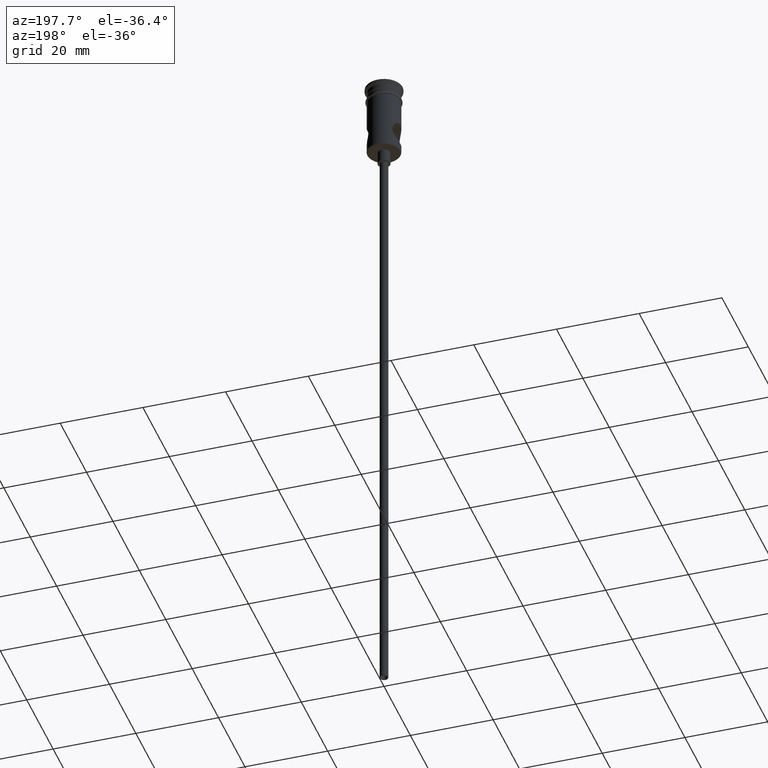
[diagram: clean part render]
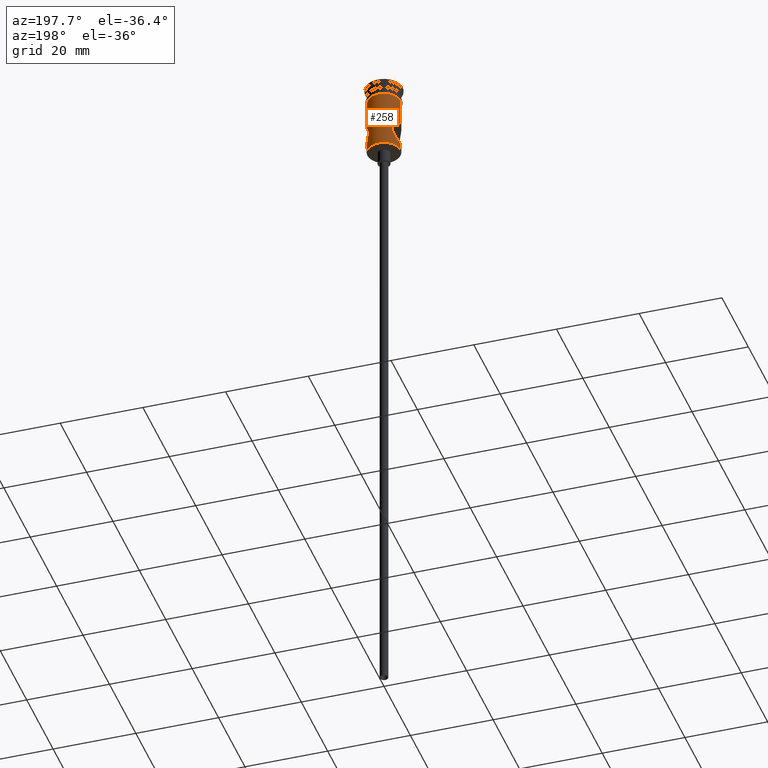
[diagram: same view with one face highlighted and labeled with its STEP entity id]
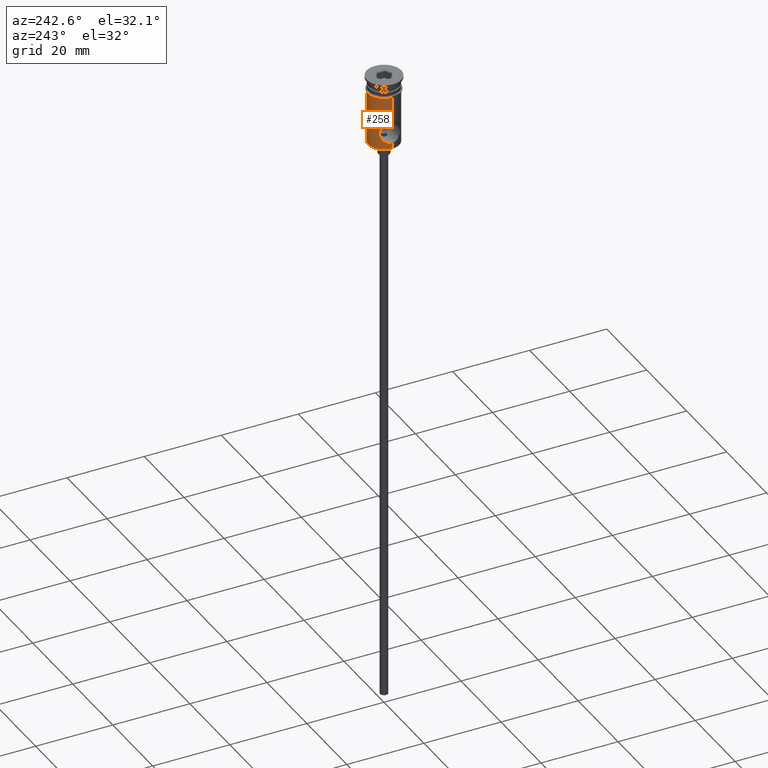
[diagram: same view with one face highlighted and labeled with its STEP entity id]
A machine part, auxiliary view. The second image highlights one B-rep face of the part: STEP entity #258.
A second angle (auxiliary view) of the same face is appended — the face is thin or edge-on in the first view.
In plain terms, the highlighted cylindrical surface (edge-blend (fillet) strip) has radius 4 mm, axis along (-0, -0, 1).
Its self-contained STEP definition (entity closure, byte-faithful):
#3 = CARTESIAN_POINT ( 'NONE',  ( 3.039098135780837762, 2.602305915985867024, -12.59307557713039216 ) ) ;
#28 = ORIENTED_EDGE ( 'NONE', *, *, #1321, .T. ) ;
#40 = CARTESIAN_POINT ( 'NONE',  ( 2.991204009610981096, 2.656164689714076044, -14.23545628303815924 ) ) ;
#75 = CARTESIAN_POINT ( 'NONE',  ( 0.000000000000000000, 0.000000000000000000, -3.799999999999998046 ) ) ;
#81 = EDGE_CURVE ( 'NONE', #1162, #254, #862, .T. ) ;
#84 = CARTESIAN_POINT ( 'NONE',  ( 3.422612705757198448, 2.075016451433645770, -11.68686323689984974 ) ) ;
#87 = AXIS2_PLACEMENT_3D ( 'NONE', #165, #592, #1266 ) ;
#92 = CARTESIAN_POINT ( 'NONE',  ( 3.898469200194268236, 0.9122845588995921462, -10.89933121525977811 ) ) ;
#95 = CARTESIAN_POINT ( 'NONE',  ( -2.990619957445074029, 2.656825094483681760, -12.76649644725104515 ) ) ;
#96 = CARTESIAN_POINT ( 'NONE',  ( 3.986569257409959377, 0.3752541894392961708, -10.76943406977662754 ) ) ;
#102 = CIRCLE ( 'NONE', #904, 4.000000000000000000 ) ;
#145 = CARTESIAN_POINT ( 'NONE',  ( 3.758839784380466842, 1.410695475187754955, -15.88804927343668005 ) ) ;
#147 = VERTEX_POINT ( 'NONE', #1293 ) ;
#154 = CARTESIAN_POINT ( 'NONE',  ( 3.217982150421164089, 2.378761493287735451, -14.89073011870239327 ) ) ;
#161 = CARTESIAN_POINT ( 'NONE',  ( 4.000000000000000000, 0.000000000000000000, 0.000000000000000000 ) ) ;
#165 = CARTESIAN_POINT ( 'NONE',  ( 0.000000000000000000, 0.000000000000000000, -17.80000000000001137 ) ) ;
#183 = ORIENTED_EDGE ( 'NONE', *, *, #522, .F. ) ;
#191 = CARTESIAN_POINT ( 'NONE',  ( -3.422360837206557704, 2.075363691986896075, -11.68737297714249124 ) ) ;
#195 = DIRECTION ( 'NONE',  ( -0.000000000000000000, -0.000000000000000000, 1.000000000000000000 ) ) ;
#197 = CARTESIAN_POINT ( 'NONE',  ( -3.039104102417667708, 2.602270566844717692, -12.59325405576322510 ) ) ;
#198 = CARTESIAN_POINT ( 'NONE',  ( 3.629467468971919075, 1.704948656411081842, -11.31407162498316943 ) ) ;
#200 = CARTESIAN_POINT ( 'NONE',  ( -4.000000000000000000, 4.898875736391346734E-16, -10.75000000000000000 ) ) ;
#201 = B_SPLINE_CURVE_WITH_KNOTS ( 'NONE', 3,
 ( #285, #712, #795, #1235, #415, #866, #949, #191, #965, #1409, #1169, #197, #95, #1286, #404, #852, #726, #411, #620, #1068, #633, #1076, #312, #734, #1292, #307, #1080, #1386, #858, #739 ),
 .UNSPECIFIED., .F., .F.,
 ( 4, 2, 2, 2, 2, 2, 2, 2, 2, 2, 2, 2, 2, 2, 4 ),
 ( 0.008916109102135036726, 0.009472529091595908307, 0.01002894908105677989, 0.01114178905997852131, 0.01169820904943938943, 0.01225462903890025754, 0.01281104902836112565, 0.01336746901782199376, 0.01392388900728286361, 0.01448030899674372998, 0.01559314897566546620, 0.01614956896512633605, 0.01670598895458720243, 0.01726240894404806880, 0.01781882893350893518 ),
 .UNSPECIFIED. ) ;
#207 = CARTESIAN_POINT ( 'NONE',  ( 3.935590311853631729, 0.7380237449173248088, -10.84441589138536699 ) ) ;
#227 = ORIENTED_EDGE ( 'NONE', *, *, #1104, .T. ) ;
#254 = VERTEX_POINT ( 'NONE', #1364 ) ;
#258 = ADVANCED_FACE ( 'NONE', ( #1153 ), #832, .T. ) ;
#259 = EDGE_CURVE ( 'NONE', #1012, #793, #102, .T. ) ;
#262 = DIRECTION ( 'NONE',  ( -0.000000000000000000, -0.000000000000000000, 1.000000000000000000 ) ) ;
#285 = CARTESIAN_POINT ( 'NONE',  ( -4.000000000000000000, 4.898875736391346734E-16, -10.75000000000000000 ) ) ;
#298 = CARTESIAN_POINT ( 'NONE',  ( 2.922849711538092699, 2.731208254861018148, -13.12921164836393650 ) ) ;
#307 = CARTESIAN_POINT ( 'NONE',  ( -3.897876258935293325, 0.9143382370299266704, -16.09976330978815895 ) ) ;
#308 = CARTESIAN_POINT ( 'NONE',  ( 4.000000000000000000, -2.885398231453893753E-20, -10.75000000000000000 ) ) ;
#312 = CARTESIAN_POINT ( 'NONE',  ( -3.628318813380886798, 1.691230916824618014, -15.67560887377282519 ) ) ;
#322 = CARTESIAN_POINT ( 'NONE',  ( 4.000000000000000000, 0.000000000000000000, 0.000000000000000000 ) ) ;
#372 = CARTESIAN_POINT ( 'NONE',  ( 3.153790941630460587, 2.462039204780214874, -14.73790887393710136 ) ) ;
#374 = VERTEX_POINT ( 'NONE', #200 ) ;
#376 = LINE ( 'NONE', #826, #1166 ) ;
#388 = CARTESIAN_POINT ( 'NONE',  ( 3.936195930800992837, 0.7345946403777908751, -16.15647894591264588 ) ) ;
#397 = CARTESIAN_POINT ( 'NONE',  ( 4.000000000000001776, 0.1887778026635980599, -16.25000000000000355 ) ) ;
#400 = CARTESIAN_POINT ( 'NONE',  ( -4.000000000000000000, -1.082428048190059701E-15, -16.25000000000000000 ) ) ;
#401 = VECTOR ( 'NONE', #1020, 1000.000000000000000 ) ;
#404 = CARTESIAN_POINT ( 'NONE',  ( -2.904637655607715807, 2.750105472685720809, -13.31355271269106311 ) ) ;
#411 = CARTESIAN_POINT ( 'NONE',  ( -2.991381809801703984, 2.655967432490847546, -14.23628159399357962 ) ) ;
#415 = CARTESIAN_POINT ( 'NONE',  ( -3.898650158565305723, 0.9113899793340292099, -10.89906584721212646 ) ) ;
#422 = ORIENTED_EDGE ( 'NONE', *, *, #259, .F. ) ;
#424 = LINE ( 'NONE', #322, #574 ) ;
#475 = DIRECTION ( 'NONE',  ( -0.000000000000000000, -0.000000000000000000, 1.000000000000000000 ) ) ;
#491 = DIRECTION ( 'NONE',  ( 1.000000000000000000, 0.000000000000000000, 0.000000000000000000 ) ) ;
#500 = CARTESIAN_POINT ( 'NONE',  ( -4.000000000000000000, 4.898587196589412829E-16, -3.799999999999998046 ) ) ;
#504 = ORIENTED_EDGE ( 'NONE', *, *, #578, .F. ) ;
#517 = CARTESIAN_POINT ( 'NONE',  ( 2.904685908915327630, 2.750054504224673124, -13.31400209527123302 ) ) ;
#522 = EDGE_CURVE ( 'NONE', #708, #1162, #1362, .T. ) ;
#568 = CARTESIAN_POINT ( 'NONE',  ( 3.986715318769655791, 0.3733211196991539360, -16.23077663263318726 ) ) ;
#574 = VECTOR ( 'NONE', #262, 1000.000000000000000 ) ;
#578 = EDGE_CURVE ( 'NONE', #374, #1197, #201, .T. ) ;
#592 = DIRECTION ( 'NONE',  ( -0.000000000000000000, -0.000000000000000000, 1.000000000000000000 ) ) ;
#620 = CARTESIAN_POINT ( 'NONE',  ( -3.040558828618885379, 2.600578980709926213, -14.41155145748494881 ) ) ;
#633 = CARTESIAN_POINT ( 'NONE',  ( -3.356081183987128735, 2.194354300722539897, -15.19340172252557331 ) ) ;
#684 = CARTESIAN_POINT ( 'NONE',  ( 3.898332255911910238, 0.9125459904059147753, -16.10045093770546742 ) ) ;
#708 = VERTEX_POINT ( 'NONE', #1275 ) ;
#709 = DIRECTION ( 'NONE',  ( -0.000000000000000000, -0.000000000000000000, 1.000000000000000000 ) ) ;
#712 = CARTESIAN_POINT ( 'NONE',  ( -3.999999999999999112, 0.1858078852913923329, -10.75000000000000178 ) ) ;
#726 = CARTESIAN_POINT ( 'NONE',  ( -2.923675419418522381, 2.730320526303180895, -13.87632886117500952 ) ) ;
#734 = CARTESIAN_POINT ( 'NONE',  ( -3.750403272509822639, 1.399798099407463248, -15.87362618509271073 ) ) ;
#739 = CARTESIAN_POINT ( 'NONE',  ( -4.000000000000000000, -1.082428048190059701E-15, -16.25000000000000000 ) ) ;
#769 = DIRECTION ( 'NONE',  ( -0.000000000000000000, -0.000000000000000000, 1.000000000000000000 ) ) ;
#793 = VERTEX_POINT ( 'NONE', #500 ) ;
#795 = CARTESIAN_POINT ( 'NONE',  ( -3.986797965649419240, 0.3731349247757173027, -10.76909995728804681 ) ) ;
#813 = CARTESIAN_POINT ( 'NONE',  ( 3.040338712675894062, 2.600841183461505501, -14.41086802801371292 ) ) ;
#814 = AXIS2_PLACEMENT_3D ( 'NONE', #1381, #475, #1272 ) ;
#818 = VECTOR ( 'NONE', #769, 1000.000000000000000 ) ;
#826 = CARTESIAN_POINT ( 'NONE',  ( -4.000000000000000000, 4.898587196589412829E-16, 0.000000000000000000 ) ) ;
#832 = CYLINDRICAL_SURFACE ( 'NONE', #814, 4.000000000000000000 ) ;
#839 = CARTESIAN_POINT ( 'NONE',  ( 2.990853264625744412, 2.656566527895887209, -12.76540023414572644 ) ) ;
#852 = CARTESIAN_POINT ( 'NONE',  ( -2.904838189979199292, 2.749893654545319421, -13.68954574786105383 ) ) ;
#858 = CARTESIAN_POINT ( 'NONE',  ( -3.999999999999999112, 0.1884943161018475810, -16.25000000000000000 ) ) ;
#862 = B_SPLINE_CURVE_WITH_KNOTS ( 'NONE', 3,
 ( #944, #397, #568, #388, #684, #145, #1131, #1022, #1363, #154, #372, #813, #40, #1077, #1069, #517, #298, #839, #3, #982, #867, #1403, #84, #198, #1085, #92, #207, #96, #1278, #308 ),
 .UNSPECIFIED., .F., .F.,
 ( 4, 2, 2, 2, 2, 2, 2, 2, 2, 2, 2, 2, 2, 2, 4 ),
 ( 1.048010074117292363E-18, 0.0005572568188834413133, 0.001114513637766881542, 0.002229027275533760049, 0.002786284094417199302, 0.003343540913300638122, 0.003900797732184077375, 0.004458054551067516628, 0.005015311369950955014, 0.005572568188834395135, 0.006129825007717833521, 0.006687081826601272774, 0.007801595464368153883, 0.008358852283251595738, 0.008916109102135036726 ),
 .UNSPECIFIED. ) ;
#866 = CARTESIAN_POINT ( 'NONE',  ( -3.758308184967917409, 1.412635338666774265, -11.11275848598740801 ) ) ;
#867 = CARTESIAN_POINT ( 'NONE',  ( 3.218452372936937866, 2.378120034323490728, -12.10820183441513365 ) ) ;
#898 = EDGE_LOOP ( 'NONE', ( #227, #1221, #504, #28, #422, #1309, #1079, #183 ) ) ;
#904 = AXIS2_PLACEMENT_3D ( 'NONE', #75, #709, #491 ) ;
#944 = CARTESIAN_POINT ( 'NONE',  ( 4.000000000000000000, 1.082428048190059701E-15, -16.25000000000000000 ) ) ;
#949 = CARTESIAN_POINT ( 'NONE',  ( -3.627876891014071070, 1.707999379360746195, -11.31682734715131922 ) ) ;
#965 = CARTESIAN_POINT ( 'NONE',  ( -3.352704555667196828, 2.184805989472308418, -11.82087544688862124 ) ) ;
#981 = CIRCLE ( 'NONE', #87, 4.000000000000000000 ) ;
#982 = CARTESIAN_POINT ( 'NONE',  ( 3.153159797772616901, 2.462863546563664574, -12.26354897380435460 ) ) ;
#993 = EDGE_CURVE ( 'NONE', #254, #1012, #424, .T. ) ;
#1012 = VERTEX_POINT ( 'NONE', #1243 ) ;
#1020 = DIRECTION ( 'NONE',  ( -0.000000000000000000, -0.000000000000000000, 1.000000000000000000 ) ) ;
#1022 = CARTESIAN_POINT ( 'NONE',  ( 3.423476604098442788, 2.073510542563412162, -15.31471501676682934 ) ) ;
#1068 = CARTESIAN_POINT ( 'NONE',  ( -3.210458317317453236, 2.392695863158818881, -14.90116197658784358 ) ) ;
#1069 = CARTESIAN_POINT ( 'NONE',  ( 2.904789332996817297, 2.749945260648944512, -13.68760613050835673 ) ) ;
#1076 = CARTESIAN_POINT ( 'NONE',  ( -3.560899448792282929, 1.827460818524927255, -15.56227107929443143 ) ) ;
#1077 = CARTESIAN_POINT ( 'NONE',  ( 2.923708177251532092, 2.730282545867590116, -13.87638281426623799 ) ) ;
#1079 = ORIENTED_EDGE ( 'NONE', *, *, #81, .F. ) ;
#1080 = CARTESIAN_POINT ( 'NONE',  ( -3.935929372452465103, 0.7361346014914833535, -16.15608523965943277 ) ) ;
#1085 = CARTESIAN_POINT ( 'NONE',  ( 3.757420049329555312, 1.415307548900980095, -11.11413128623153490 ) ) ;
#1101 = LINE ( 'NONE', #1315, #818 ) ;
#1104 = EDGE_CURVE ( 'NONE', #708, #147, #981, .T. ) ;
#1131 = CARTESIAN_POINT ( 'NONE',  ( 3.628548934766043121, 1.706512450506086465, -15.68423018591682805 ) ) ;
#1153 = FACE_OUTER_BOUND ( 'NONE', #898, .T. ) ;
#1162 = VERTEX_POINT ( 'NONE', #1377 ) ;
#1166 = VECTOR ( 'NONE', #195, 1000.000000000000000 ) ;
#1169 = CARTESIAN_POINT ( 'NONE',  ( -3.152150098412337176, 2.464125728423233408, -12.26627202958722052 ) ) ;
#1197 = VERTEX_POINT ( 'NONE', #400 ) ;
#1221 = ORIENTED_EDGE ( 'NONE', *, *, #1246, .T. ) ;
#1235 = CARTESIAN_POINT ( 'NONE',  ( -3.935773863085988200, 0.7372053917619743046, -10.84414365491493371 ) ) ;
#1243 = CARTESIAN_POINT ( 'NONE',  ( 4.000000000000000000, 0.000000000000000000, -3.799999999999998046 ) ) ;
#1246 = EDGE_CURVE ( 'NONE', #147, #1197, #376, .T. ) ;
#1266 = DIRECTION ( 'NONE',  ( -1.000000000000000000, 0.000000000000000000, 0.000000000000000000 ) ) ;
#1272 = DIRECTION ( 'NONE',  ( 1.000000000000000000, 0.000000000000000000, 0.000000000000000000 ) ) ;
#1275 = CARTESIAN_POINT ( 'NONE',  ( 4.000000000000000000, 0.000000000000000000, -17.80000000000001137 ) ) ;
#1278 = CARTESIAN_POINT ( 'NONE',  ( 4.000000000000000000, 0.1860873315878985856, -10.74999999999999645 ) ) ;
#1286 = CARTESIAN_POINT ( 'NONE',  ( -2.922903409755361892, 2.731146823183896899, -13.12907672655106239 ) ) ;
#1292 = CARTESIAN_POINT ( 'NONE',  ( -3.805236129597703076, 1.244842054105928630, -15.95868906918809493 ) ) ;
#1293 = CARTESIAN_POINT ( 'NONE',  ( -4.000000000000000000, 4.898587196589412829E-16, -17.80000000000001137 ) ) ;
#1309 = ORIENTED_EDGE ( 'NONE', *, *, #993, .F. ) ;
#1315 = CARTESIAN_POINT ( 'NONE',  ( -4.000000000000000000, 4.898587196589412829E-16, 0.000000000000000000 ) ) ;
#1321 = EDGE_CURVE ( 'NONE', #374, #793, #1101, .T. ) ;
#1362 = LINE ( 'NONE', #161, #401 ) ;
#1363 = CARTESIAN_POINT ( 'NONE',  ( 3.352571063512280070, 2.184990303520331079, -15.17882514829168805 ) ) ;
#1364 = CARTESIAN_POINT ( 'NONE',  ( 4.000000000000000000, -2.885398231453893753E-20, -10.75000000000000000 ) ) ;
#1377 = CARTESIAN_POINT ( 'NONE',  ( 4.000000000000000000, 1.082428048190059701E-15, -16.25000000000000000 ) ) ;
#1381 = CARTESIAN_POINT ( 'NONE',  ( 0.000000000000000000, 0.000000000000000000, 0.000000000000000000 ) ) ;
#1386 = CARTESIAN_POINT ( 'NONE',  ( -3.986675172797201405, 0.3739722490365800511, -16.23071926583458691 ) ) ;
#1403 = CARTESIAN_POINT ( 'NONE',  ( 3.352887962353420903, 2.184498314583853240, -11.82055838298663275 ) ) ;
#1409 = CARTESIAN_POINT ( 'NONE',  ( -3.217675228092755635, 2.379195489181981316, -12.10994054056969560 ) ) ;